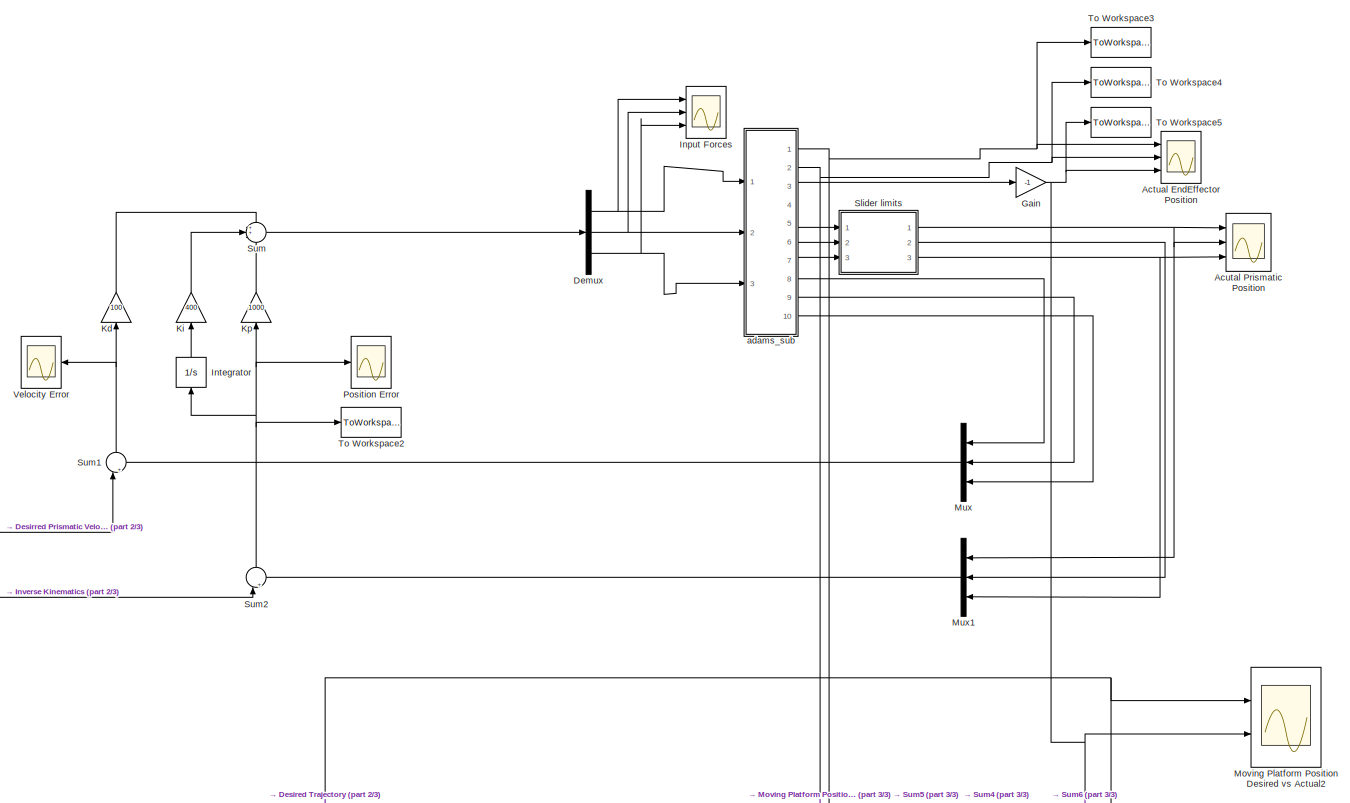
[diagram: root canvas - part 1/3, top center region]
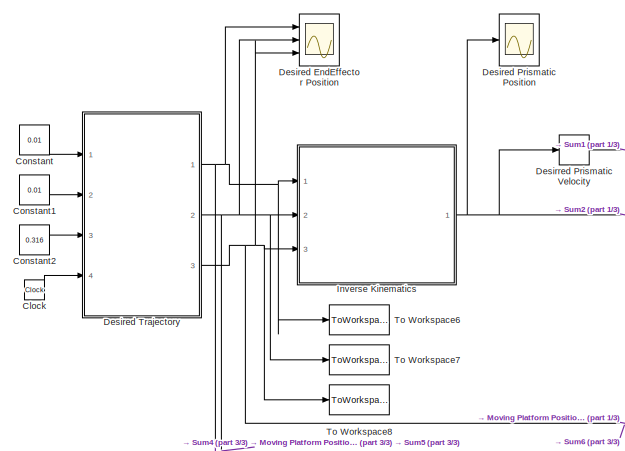
[diagram: root canvas - part 2/3, middle left region]
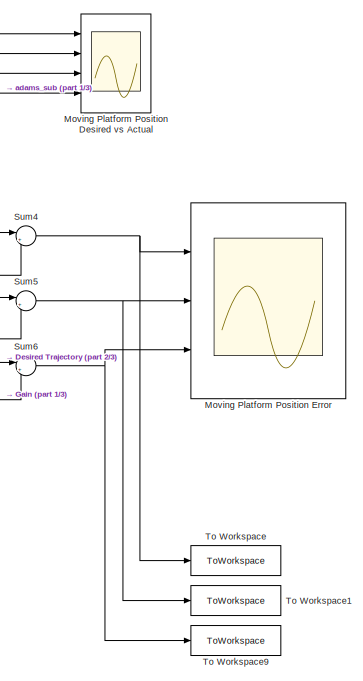
[diagram: root canvas - part 3/3, bottom right region]
MODEL slx_8de24fc4890f
KIND model
CONFIG AbsTol = auto
CONFIG EnableMultiTasking = off
CONFIG FixedStep = 0.001
CONFIG MaxStep = auto
CONFIG MinStep = auto
CONFIG RelTol = 1e-3
CONFIG SampleTimeConstraint = Unconstrained
CONFIG SolverName = FixedStepAuto
CONFIG StartTime = 0.0
CONFIG StopTime = 5
BLOCK [Scope] Actual EndEffector Position
  Floating = off
  NumInputPorts = 3
  Ports = [3]
  ScopeSpecificationString = Simulink.scopes.TimeScopeBlockCfg('CurrentConfiguration', extmgr.ConfigurationSet(extmgr.Configuration('Core','General UI',true,'FigureColor',[1 1 1]),extmgr.Configuration('Core','Source UI',true),extmgr.Configuration('Sources','WiredSimulink',true,'DataLoggingVariableName','ScopeData1'),extmgr.Configuration('Visuals','Time Domain',true,'SerializedDisplays',{struct('MinYLimReal','-0.5','MaxYLimRea...<+1715ch>
BLOCK [Scope] Acutal Prismatic Position
  Floating = off
  NumInputPorts = 3
  Ports = [3]
  ScopeSpecificationString = Simulink.scopes.TimeScopeBlockCfg('CurrentConfiguration', extmgr.ConfigurationSet(extmgr.Configuration('Core','General UI',true,'FigureColor',[1 1 1]),extmgr.Configuration('Core','Source UI',true),extmgr.Configuration('Sources','WiredSimulink',true,'DataLoggingVariableName','ScopeData2'),extmgr.Configuration('Visuals','Time Domain',true,'SerializedDisplays',{struct('MinYLimReal','0.05','MaxYLimRea...<+1735ch>
BLOCK [Clock] Clock
BLOCK [Constant] Constant
  Value = 0.01
BLOCK [Constant] Constant1
  Value = 0.01
BLOCK [Constant] Constant2
  Value = 0.316
BLOCK [Demux] Demux
  Outputs = 3
  Ports = [1, 3]
BLOCK [Scope] Desired EndEffector Position
  Floating = off
  NumInputPorts = 3
  Ports = [3]
  ScopeSpecificationString = Simulink.scopes.TimeScopeBlockCfg('CurrentConfiguration', extmgr.ConfigurationSet(extmgr.Configuration('Core','General UI',true,'FigureColor',[1 1 1]),extmgr.Configuration('Core','Source UI',true),extmgr.Configuration('Sources','WiredSimulink',true,'DataLoggingVariableName','ScopeData3'),extmgr.Configuration('Visuals','Time Domain',true,'SerializedDisplays',{struct('MinYLimReal','-0.5','MaxYLimRea...<+1749ch>
BLOCK [Scope] Desired Prismatic Position
  Floating = off
  NumInputPorts = 1
  Ports = [1]
  ScopeSpecificationString = Simulink.scopes.TimeScopeBlockCfg('CurrentConfiguration', extmgr.ConfigurationSet(extmgr.Configuration('Core','General UI',true,'FigureColor',[1 1 1]),extmgr.Configuration('Core','Source UI',true),extmgr.Configuration('Sources','WiredSimulink',true,'DataLoggingVariableName','ScopeData4'),extmgr.Configuration('Visuals','Time Domain',true,'SerializedDisplays',{struct('MinYLimReal','0','MaxYLimReal',...<+1741ch>
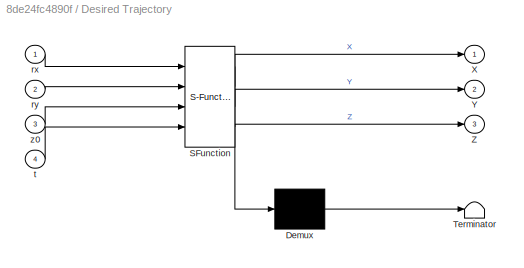
BLOCK [SubSystem] Desired Trajectory
  ErrorFcn = Stateflow.Translate.translate
  PermitHierarchicalResolution = ExplicitOnly
  Ports = [4, 3]
  RequestExecContextInheritance = off
  SFBlockType = MATLAB Function
  TreatAsAtomicUnit = on
BLOCK [Demux] Desired Trajectory/ Demux 
  Outputs = 1
  Ports = [1, 1]
BLOCK [S-Function] Desired Trajectory/ SFunction 
  EnableBusSupport = on
  FunctionName = sf_sfun
  PortCounts = [4 4]
  Ports = [4, 4]
  SFcnIsStateOwnerBlock = off
  SFunctionDeploymentMode = off
  Tag = Stateflow S-Function 3
BLOCK [Terminator] Desired Trajectory/ Terminator 
BLOCK [Outport] Desired Trajectory/X
  VectorParamsAs1DForOutWhenUnconnected = off
BLOCK [Outport] Desired Trajectory/Y
  Port = 2
  VectorParamsAs1DForOutWhenUnconnected = off
BLOCK [Outport] Desired Trajectory/Z
  Port = 3
  VectorParamsAs1DForOutWhenUnconnected = off
BLOCK [Inport] Desired Trajectory/rx
BLOCK [Inport] Desired Trajectory/ry
  Port = 2
BLOCK [Inport] Desired Trajectory/t
  Port = 4
BLOCK [Inport] Desired Trajectory/z0
  Port = 3
BLOCK [Derivative] Desirred Prismatic Velocity
BLOCK [Gain] Gain
  Gain = -1
BLOCK [Scope] Input Forces
  Floating = off
  NumInputPorts = 3
  Ports = [3]
  ScopeSpecificationString = Simulink.scopes.TimeScopeBlockCfg('CurrentConfiguration', extmgr.ConfigurationSet(extmgr.Configuration('Core','General UI',true,'FigureColor',[1 1 1]),extmgr.Configuration('Core','Source UI',true),extmgr.Configuration('Sources','WiredSimulink',true,'DataLoggingVariableName','ScopeData5'),extmgr.Configuration('Visuals','Time Domain',true,'SerializedDisplays',{struct('MinYLimReal','-10','MaxYLimReal...<+1710ch>
BLOCK [Integrator] Integrator
  NameLocation = right
  Ports = [1, 1]
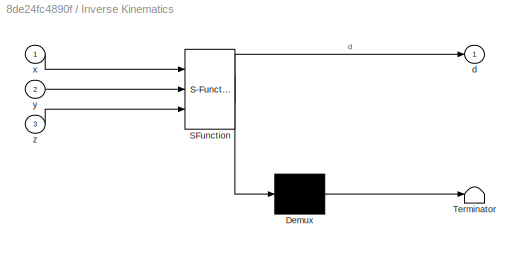
BLOCK [SubSystem] Inverse Kinematics
  ErrorFcn = Stateflow.Translate.translate
  PermitHierarchicalResolution = ExplicitOnly
  Ports = [3, 1]
  RequestExecContextInheritance = off
  SFBlockType = MATLAB Function
  TreatAsAtomicUnit = on
BLOCK [Demux] Inverse Kinematics/ Demux 
  Outputs = 1
  Ports = [1, 1]
BLOCK [S-Function] Inverse Kinematics/ SFunction 
  EnableBusSupport = on
  FunctionName = sf_sfun
  PortCounts = [3 2]
  Ports = [3, 2]
  SFcnIsStateOwnerBlock = off
  SFunctionDeploymentMode = off
  Tag = Stateflow S-Function 2
BLOCK [Terminator] Inverse Kinematics/ Terminator 
BLOCK [Outport] Inverse Kinematics/d
  VectorParamsAs1DForOutWhenUnconnected = off
BLOCK [Inport] Inverse Kinematics/x
BLOCK [Inport] Inverse Kinematics/y
  Port = 2
BLOCK [Inport] Inverse Kinematics/z
  Port = 3
BLOCK [Gain] Kd
  Gain = 100
  NameLocation = right
BLOCK [Gain] Ki
  Gain = 400
  NameLocation = right
BLOCK [Gain] Kp
  Gain = 1000
  NameLocation = right
BLOCK [Scope] Moving Platform Position Desired vs Actual
  Floating = off
  NumInputPorts = 4
  Ports = [4]
  ScopeSpecificationString = Simulink.scopes.TimeScopeBlockCfg('CurrentConfiguration', extmgr.ConfigurationSet(extmgr.Configuration('Core','General UI',true,'FigureColor',[1 1 1]),extmgr.Configuration('Core','Source UI',true),extmgr.Configuration('Sources','WiredSimulink',true),extmgr.Configuration('Visuals','Time Domain',true,'SerializedDisplays',{struct('MinYLimReal','-0.05','MaxYLimReal','0.05','YLabelReal','','MinYLimMag'...<+1742ch>
BLOCK [Scope] Moving Platform Position Desired vs Actual2
  Floating = off
  NumInputPorts = 2
  Ports = [2]
  ScopeSpecificationString = Simulink.scopes.TimeScopeBlockCfg('CurrentConfiguration', extmgr.ConfigurationSet(extmgr.Configuration('Core','General UI',true,'FigureColor',[1 1 1]),extmgr.Configuration('Core','Source UI',true),extmgr.Configuration('Sources','WiredSimulink',true,'DataLoggingVariableName','ScopeData2'),extmgr.Configuration('Visuals','Time Domain',true,'SerializedDisplays',{struct('MinYLimReal','-0.5','MaxYLimRea...<+1731ch>
BLOCK [Scope] Moving Platform Position Error
  Floating = off
  NumInputPorts = 3
  Ports = [3]
  ScopeSpecificationString = Simulink.scopes.TimeScopeBlockCfg('CurrentConfiguration', extmgr.ConfigurationSet(extmgr.Configuration('Core','General UI',true,'FigureColor',[1 1 1]),extmgr.Configuration('Core','Source UI',true),extmgr.Configuration('Sources','WiredSimulink',true,'DataLoggingVariableName','ScopeData1'),extmgr.Configuration('Visuals','Time Domain',true,'SerializedDisplays',{struct('MinYLimReal','-0.02','MaxYLimRe...<+1727ch>
BLOCK [Mux] Mux
  DisplayOption = bar
  Inputs = 3
  Ports = [3, 1]
BLOCK [Mux] Mux1
  DisplayOption = bar
  Inputs = 3
  Ports = [3, 1]
BLOCK [Scope] Position Error
  Floating = off
  NumInputPorts = 1
  Ports = [1]
  ScopeSpecificationString = Simulink.scopes.TimeScopeBlockCfg('CurrentConfiguration', extmgr.ConfigurationSet(extmgr.Configuration('Core','General UI',true,'FigureColor',[1 1 1]),extmgr.Configuration('Core','Source UI',true),extmgr.Configuration('Sources','WiredSimulink',true,'DataLoggingVariableName','ScopeData1'),extmgr.Configuration('Visuals','Time Domain',true,'SerializedDisplays',{struct('MinYLimReal','-0.05','MaxYLimRe...<+1709ch>
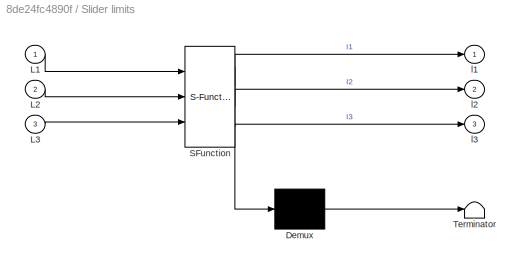
BLOCK [SubSystem] Slider limits
  ErrorFcn = Stateflow.Translate.translate
  PermitHierarchicalResolution = ExplicitOnly
  Ports = [3, 3]
  RequestExecContextInheritance = off
  SFBlockType = MATLAB Function
  TreatAsAtomicUnit = on
BLOCK [Demux] Slider limits/ Demux 
  Outputs = 1
  Ports = [1, 1]
BLOCK [S-Function] Slider limits/ SFunction 
  EnableBusSupport = on
  FunctionName = sf_sfun
  PortCounts = [3 4]
  Ports = [3, 4]
  SFcnIsStateOwnerBlock = off
  SFunctionDeploymentMode = off
  Tag = Stateflow S-Function 7
BLOCK [Terminator] Slider limits/ Terminator 
BLOCK [Inport] Slider limits/L1
BLOCK [Inport] Slider limits/L2
  Port = 2
BLOCK [Inport] Slider limits/L3
  Port = 3
BLOCK [Outport] Slider limits/l1
  VectorParamsAs1DForOutWhenUnconnected = off
BLOCK [Outport] Slider limits/l2
  Port = 2
  VectorParamsAs1DForOutWhenUnconnected = off
BLOCK [Outport] Slider limits/l3
  Port = 3
  VectorParamsAs1DForOutWhenUnconnected = off
BLOCK [Sum] Sum
  Inputs = 3
  Ports = [3, 1]
BLOCK [Sum] Sum1
  Inputs = |+-
  NameLocation = right
  Ports = [2, 1]
BLOCK [Sum] Sum2
  Inputs = |+-
  NameLocation = right
  Ports = [2, 1]
BLOCK [Sum] Sum4
  Inputs = |+-
  Ports = [2, 1]
BLOCK [Sum] Sum5
  Inputs = |+-
  Ports = [2, 1]
BLOCK [Sum] Sum6
  Inputs = |+-
  Ports = [2, 1]
BLOCK [ToWorkspace] To Workspace
  FixptAsFi = on
  MaxDataPoints = inf
  Ports = [1]
  SampleTime = -1
  VariableName = MP_PID_X
BLOCK [ToWorkspace] To Workspace1
  FixptAsFi = on
  MaxDataPoints = inf
  Ports = [1]
  SampleTime = -1
  VariableName = MP_PID_Y
BLOCK [ToWorkspace] To Workspace2
  FixptAsFi = on
  MaxDataPoints = inf
  Ports = [1]
  SampleTime = -1
  VariableName = Position_Error
BLOCK [ToWorkspace] To Workspace3
  FixptAsFi = on
  MaxDataPoints = inf
  Ports = [1]
  SampleTime = -1
  VariableName = Actual_X
BLOCK [ToWorkspace] To Workspace4
  FixptAsFi = on
  MaxDataPoints = inf
  Ports = [1]
  SampleTime = -1
  VariableName = Actual_Y
BLOCK [ToWorkspace] To Workspace5
  FixptAsFi = on
  MaxDataPoints = inf
  Ports = [1]
  SampleTime = -1
  VariableName = Actual_Z
BLOCK [ToWorkspace] To Workspace6
  FixptAsFi = on
  MaxDataPoints = inf
  Ports = [1]
  SampleTime = -1
  VariableName = Desired_X
BLOCK [ToWorkspace] To Workspace7
  FixptAsFi = on
  MaxDataPoints = inf
  Ports = [1]
  SampleTime = -1
  VariableName = Desired_Y
BLOCK [ToWorkspace] To Workspace8
  FixptAsFi = on
  MaxDataPoints = inf
  Ports = [1]
  SampleTime = -1
  VariableName = Desired_Z
BLOCK [ToWorkspace] To Workspace9
  FixptAsFi = on
  MaxDataPoints = inf
  Ports = [1]
  SampleTime = -1
  VariableName = MP_PID_Z
BLOCK [Scope] Velocity Error
  Floating = off
  NumInputPorts = 1
  Ports = [1]
  ScopeSpecificationString = Simulink.scopes.TimeScopeBlockCfg('CurrentConfiguration', extmgr.ConfigurationSet(extmgr.Configuration('Core','General UI',true,'FigureColor',[1 1 1]),extmgr.Configuration('Core','Source UI',true),extmgr.Configuration('Sources','WiredSimulink',true,'DataLoggingVariableName','ScopeData2'),extmgr.Configuration('Visuals','Time Domain',true,'SerializedDisplays',{struct('MinYLimReal','0','MaxYLimReal',...<+1699ch>
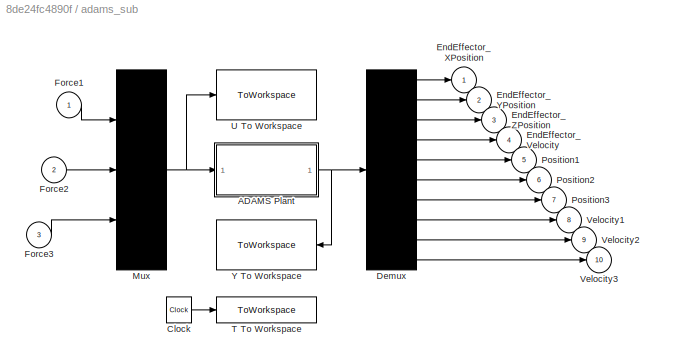
BLOCK [SubSystem] adams_sub
  Ports = [3, 10]
  RequestExecContextInheritance = off
  ShowPortLabels = none
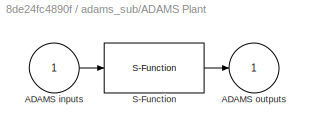
BLOCK [SubSystem] adams_sub/ADAMS Plant
  InitFcn = clear mex
  LoadFcn = %check based on dialog box setting for when setting by popup menu                                             \nif exist('ADAMS_solver_type')                                                                                 \n  if strcmp(ADAMS_solver_type,'C++')                                                                          \n    set_param(gcb,'exetyp','C++');                                 ...<+4486ch>
  OpenFcn = open_system(gcb,'mask')                                                                                                                          \nif not(exist('set_some_params_states'))                                                                                                          \n                                                                                                            ...<+625ch>
  Ports = [1, 1]
  RequestExecContextInheritance = off
BLOCK [Inport] adams_sub/ADAMS Plant/ADAMS inputs
BLOCK [Outport] adams_sub/ADAMS Plant/ADAMS outputs
  InitialOutput = 0
BLOCK [S-Function] adams_sub/ADAMS Plant/S-Function
  EnableBusSupport = off
  FunctionName = adams_plant
  Parameters = exevie,exesol,stat,outfil,nampre,o_rate,nam_in,namout,dft,modsim,modani,dt_out,inicmd,exetyp,comtyp,ada_host, workdir,pin_interp_order,pout_extrap_order,pin_extrap_order,pout_interp_order,simulink_lead_cosim
  Ports = [1, 1]
  SFcnIsStateOwnerBlock = off
  SFunctionDeploymentMode = off
  StopFcn = clear mex
BLOCK [Clock] adams_sub/Clock
BLOCK [Demux] adams_sub/Demux
  DisplayOption = none
  Outputs = 10
  Ports = [1, 10]
BLOCK [Outport] adams_sub/EndEffector_Velocity 
  Port = 4
BLOCK [Outport] adams_sub/EndEffector_XPosition
BLOCK [Outport] adams_sub/EndEffector_YPosition
  Port = 2
BLOCK [Outport] adams_sub/EndEffector_ZPosition
  Port = 3
BLOCK [Inport] adams_sub/Force1
BLOCK [Inport] adams_sub/Force2
  Port = 2
BLOCK [Inport] adams_sub/Force3
  Port = 3
BLOCK [Mux] adams_sub/Mux
  Inputs = 3
  Ports = [3, 1]
BLOCK [Outport] adams_sub/Position1            
  Port = 5
BLOCK [Outport] adams_sub/Position2            
  Port = 6
BLOCK [Outport] adams_sub/Position3            
  Port = 7
BLOCK [ToWorkspace] adams_sub/T To Workspace
  MaxDataPoints = 100000
  Ports = [1]
  VariableName = ADAMS_tout
BLOCK [ToWorkspace] adams_sub/U To Workspace
  MaxDataPoints = 100000
  Ports = [1]
  VariableName = ADAMS_uout
BLOCK [Outport] adams_sub/Velocity1            
  Port = 8
BLOCK [Outport] adams_sub/Velocity2            
  Port = 9
BLOCK [Outport] adams_sub/Velocity3            
  Port = 10
BLOCK [ToWorkspace] adams_sub/Y To Workspace
  MaxDataPoints = 100000
  Ports = [1]
  VariableName = ADAMS_yout
LINE Clock:1 -> Desired Trajectory:4
LINE Constant1:1 -> Desired Trajectory:2
LINE Constant2:1 -> Desired Trajectory:3
LINE Constant:1 -> Desired Trajectory:1
NET Demux:1 -> Input Forces:1, adams_sub:1
NET Demux:2 -> Input Forces:2, adams_sub:2
NET Demux:3 -> Input Forces:3, adams_sub:3
NET Desired Trajectory:1 -> Desired EndEffector Position:1, Inverse Kinematics:1, Moving Platform Position Desired vs Actual:1, Sum4:1, To Workspace6:1
NET Desired Trajectory:2 -> Desired EndEffector Position:2, Inverse Kinematics:2, Moving Platform Position Desired vs Actual:2, Sum5:1, To Workspace7:1
NET Desired Trajectory:3 -> Desired EndEffector Position:3, Inverse Kinematics:3, Moving Platform Position Desired vs Actual2:1, Sum6:1, To Workspace8:1
LINE Desirred Prismatic Velocity:1 -> Sum1:1
NET Gain:1 -> Actual EndEffector Position:3, Moving Platform Position Desired vs Actual2:2, Sum6:2, To Workspace5:1
LINE Integrator:1 -> Ki:1
NET Inverse Kinematics:1 -> Desired Prismatic Position:1, Desirred Prismatic Velocity:1, Sum2:1
LINE Kd:1 -> Sum:1
LINE Ki:1 -> Sum:2
LINE Kp:1 -> Sum:3
LINE Mux1:1 -> Sum2:2
LINE Mux:1 -> Sum1:2
NET Slider limits:1 -> Acutal Prismatic Position:1, Acutal Prismatic Position:2, Mux1:1
LINE Slider limits:2 -> Mux1:2
NET Slider limits:3 -> Acutal Prismatic Position:3, Mux1:3
NET Sum1:1 -> Kd:1, Velocity Error:1
NET Sum2:1 -> Integrator:1, Kp:1, Position Error:1, To Workspace2:1
NET Sum4:1 -> Moving Platform Position Error:1, To Workspace:1
NET Sum5:1 -> Moving Platform Position Error:2, To Workspace1:1
NET Sum6:1 -> Moving Platform Position Error:3, To Workspace9:1
LINE Sum:1 -> Demux:1
LINE adams_sub/ADAMS Plant/ADAMS inputs:1 -> adams_sub/ADAMS Plant/S-Function:1
LINE adams_sub/ADAMS Plant/S-Function:1 -> adams_sub/ADAMS Plant/ADAMS outputs:1
NET adams_sub/ADAMS Plant:1 -> adams_sub/Demux:1, adams_sub/Y To Workspace:1
LINE adams_sub/Clock:1 -> adams_sub/T To Workspace:1
LINE adams_sub/Demux:1 -> adams_sub/EndEffector_XPosition:1
LINE adams_sub/Demux:10 -> adams_sub/Velocity3            :1
LINE adams_sub/Demux:2 -> adams_sub/EndEffector_YPosition:1
LINE adams_sub/Demux:3 -> adams_sub/EndEffector_ZPosition:1
LINE adams_sub/Demux:4 -> adams_sub/EndEffector_Velocity :1
LINE adams_sub/Demux:5 -> adams_sub/Position1            :1
LINE adams_sub/Demux:6 -> adams_sub/Position2            :1
LINE adams_sub/Demux:7 -> adams_sub/Position3            :1
LINE adams_sub/Demux:8 -> adams_sub/Velocity1            :1
LINE adams_sub/Demux:9 -> adams_sub/Velocity2            :1
LINE adams_sub/Force1:1 -> adams_sub/Mux:1
LINE adams_sub/Force2:1 -> adams_sub/Mux:2
LINE adams_sub/Force3:1 -> adams_sub/Mux:3
NET adams_sub/Mux:1 -> adams_sub/ADAMS Plant:1, adams_sub/U To Workspace:1
NET adams_sub:1 -> Actual EndEffector Position:1, Moving Platform Position Desired vs Actual:3, Sum4:2, To Workspace3:1
LINE adams_sub:10 -> Mux:3
NET adams_sub:2 -> Actual EndEffector Position:2, Moving Platform Position Desired vs Actual:4, Sum5:2, To Workspace4:1
LINE adams_sub:3 -> Gain:1
LINE adams_sub:5 -> Slider limits:1
LINE adams_sub:6 -> Slider limits:2
LINE adams_sub:7 -> Slider limits:3
LINE adams_sub:8 -> Mux:1
LINE adams_sub:9 -> Mux:2
note: NET lines group one-source signal fan-out (src -> all destinations, sorted); 1:1 wires keep LINE
CHART Inverse Kinematics states=1 transitions=1
  STATE_LABEL 'eML_blk_kernel()'
  STATE_LABEL 'SCRIPT:\nfunction d = fcn(x,y,z)\nSB = 0.485; % meters\nWB = 0.140; % meters\nUB = 0.280; % meters\n\nsp = 0.09268;\nwp = 0.02675;\nup = 0.05351;\n\nl = 0.365; % meters\n\na = SB/2 - sp/2;\nb = WB - wp;\nc = up - UB;\n\nC1 = x^2 + y^2 + z^2 + a^2 + b^2 + 2*a*x + 2*b*y - l^2;\nC2 = x^2 + y^2 + z^2 + a^2 + b^2 - 2*a*x + 2*b*y - l^2 ;\nC3 = x^2 + y^2 + z^2 + c^2 + 2*c*y - l^2;\n\nL1 = -z - (z^2 - C1)^0.5 - 0.054; % addi...<+226ch>'
CHART Desired Trajectory states=1 transitions=1
  STATE_LABEL 'eML_blk_kernel()'
  STATE_LABEL 'SCRIPT:\nfunction [X,Y,Z] = fcn(rx, ry, z0, t)\n\nw = 1;\nv = 1;\n\n\nX =  rx*sin((pi/6)*t);\nY =  ry*cos((pi/6)*t);\nZ = -(z0 + ((pi/6)*t)/100);\n\nend\n'
CHART Slider limits states=1 transitions=1
  STATE_LABEL 'eML_blk_kernel()'
  STATE_LABEL 'SCRIPT:\nfunction [l1, l2, l3] = fcn(L1, L2, L3)\n\n\nl1 = L1;\nl2 = L2;\nl3 = L3;\n\nend\n'
CHART  states=0 transitions=0
CHART  states=0 transitions=0
CHART  states=0 transitions=0
